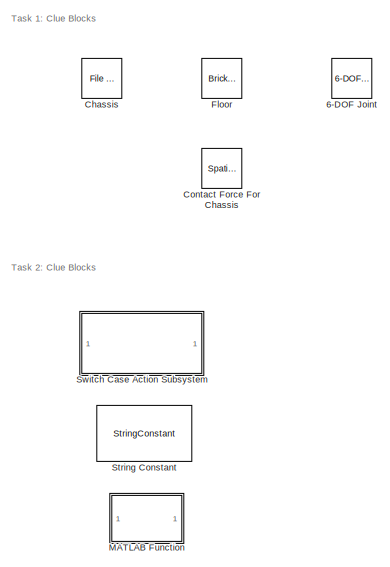
[diagram: root canvas - part 1/2, left side, full height]
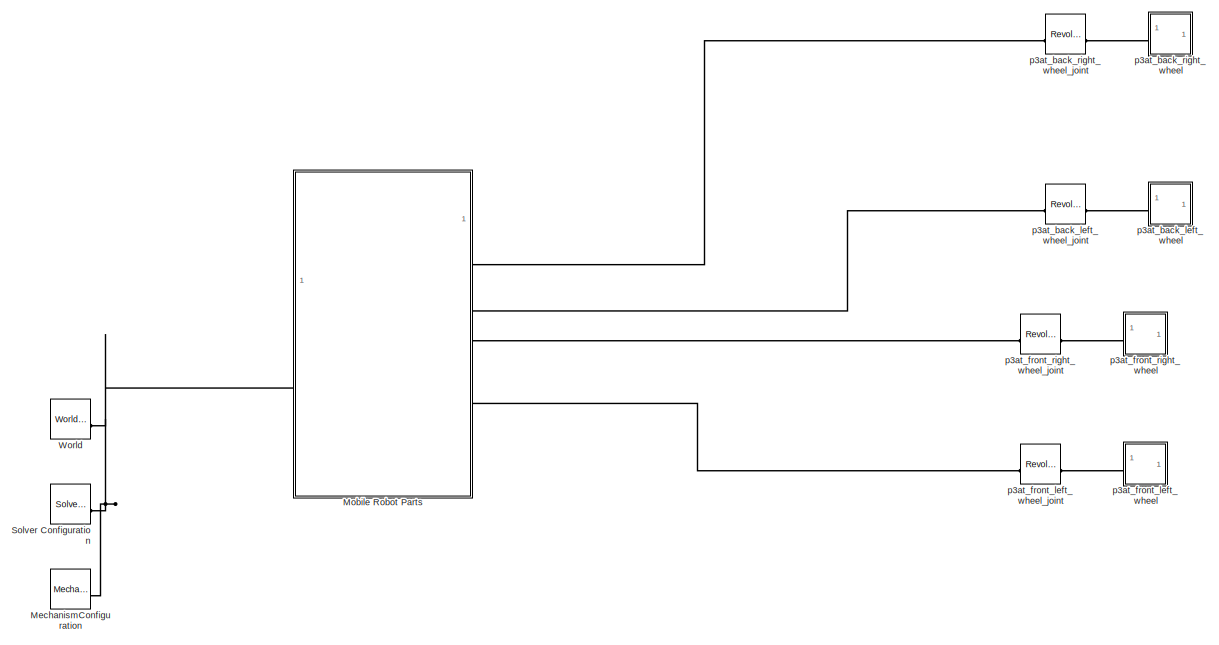
[diagram: root canvas - part 2/2, most of the canvas]
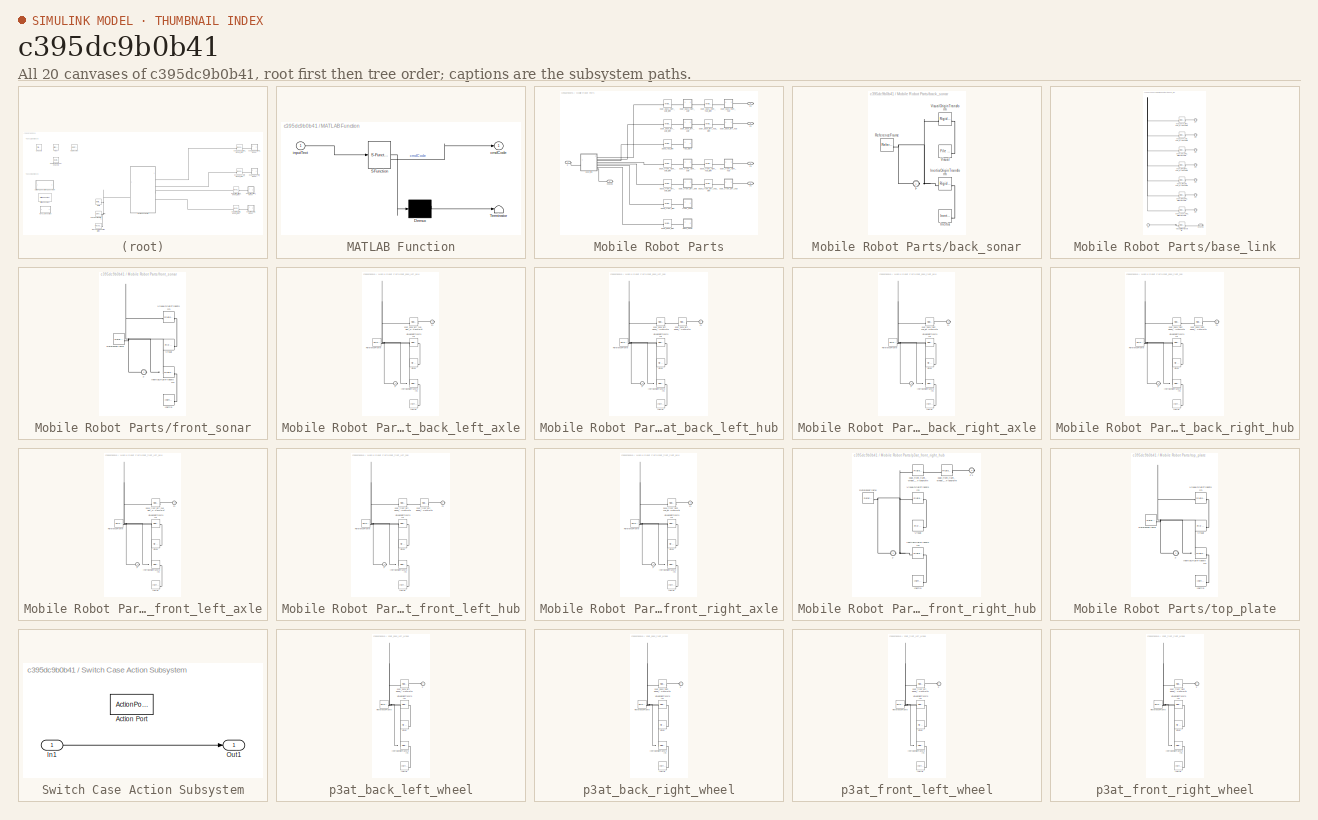
[diagram: thumbnail index - all 20 canvases of the model, root first then tree order]
MODEL slx_c395dc9b0b41
KIND model
CONFIG AbsTol = auto
CONFIG EnableMultiTasking = off
CONFIG FixedStep = auto
CONFIG MaxStep = auto
CONFIG MinStep = auto
CONFIG RelTol = 1e-3
CONFIG SampleTimeConstraint = Unconstrained
CONFIG SolverName = VariableStepAuto
CONFIG StartTime = 0.0
CONFIG StopTime = 10.0
BLOCK [Reference] 6-DOF Joint  REF=sm_lib/Joints/6-DOF Joint
  SourceBlock = sm_lib/Joints/6-DOF Joint
  SourceType = 6-DOF Joint
BLOCK [Reference] Chassis  REF=sm_lib/Body Elements/File Solid
  SourceBlock = sm_lib/Body Elements/File Solid
  SourceType = File Solid
BLOCK [Reference] Contact Force For Chassis  REF=sm_lib/Forces and
Torques/Spatial
Contact Force
  NameLocation = right
  SourceBlock = sm_lib/Forces and\nTorques/Spatial\nContact Force
  SourceType = Spatial\nContact Force
BLOCK [Reference] Floor  REF=sm_lib/Body Elements/Brick Solid
  SourceBlock = sm_lib/Body Elements/Brick Solid
  SourceType = Brick Solid
BLOCK [SubSystem] MATLAB Function
  ErrorFcn = Stateflow.Translate.translate
  PermitHierarchicalResolution = ExplicitOnly
  SFBlockType = MATLAB Function
  TreatAsAtomicUnit = on
BLOCK [Demux] MATLAB Function/ Demux 
  Outputs = 1
BLOCK [S-Function] MATLAB Function/ SFunction 
  EnableBusSupport = on
  FunctionName = sf_sfun
  PortCounts = [1 2]
  SFcnIsStateOwnerBlock = off
  SFunctionDeploymentMode = off
  Tag = Stateflow S-Function 2
BLOCK [Terminator] MATLAB Function/ Terminator 
BLOCK [Outport] MATLAB Function/cmdCode
BLOCK [Inport] MATLAB Function/inputText
BLOCK [Reference] MechanismConfiguration  REF=sm_lib/Utilities/Mechanism
Configuration
  SourceBlock = sm_lib/Utilities/Mechanism\nConfiguration
  SourceType = Mechanism\nConfiguration
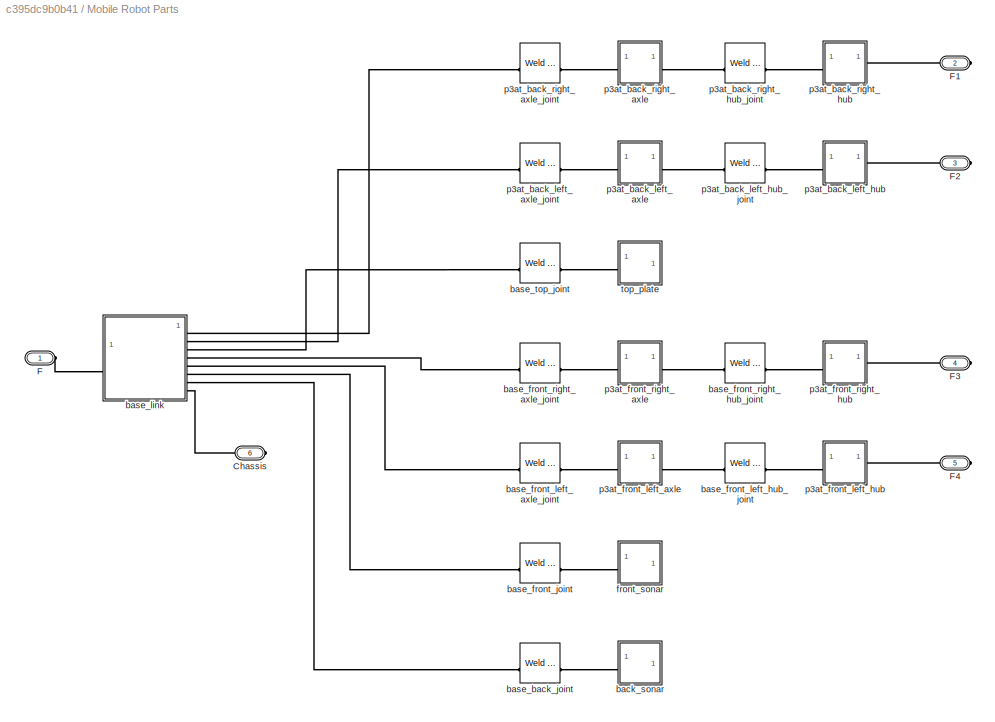
BLOCK [SubSystem] Mobile Robot Parts
BLOCK [PMIOPort] Mobile Robot Parts/Chassis
  Port = 6
  Side = Right
BLOCK [PMIOPort] Mobile Robot Parts/F
  Side = Left
BLOCK [PMIOPort] Mobile Robot Parts/F1
  Port = 2
  Side = Right
BLOCK [PMIOPort] Mobile Robot Parts/F2
  Port = 3
  Side = Right
BLOCK [PMIOPort] Mobile Robot Parts/F3
  Port = 4
  Side = Right
BLOCK [PMIOPort] Mobile Robot Parts/F4
  Port = 5
  Side = Right
BLOCK [SubSystem] Mobile Robot Parts/back_sonar
BLOCK [PMIOPort] Mobile Robot Parts/back_sonar/F
  Side = Left
BLOCK [Reference] Mobile Robot Parts/back_sonar/Inertia  REF=sm_lib/Body Elements/Inertia
  SourceBlock = sm_lib/Body Elements/Inertia
  SourceType = Inertia
BLOCK [Reference] Mobile Robot Parts/back_sonar/InertiaOriginTransform  REF=sm_lib/Frames and
Transforms/Rigid
Transform
  SourceBlock = sm_lib/Frames and\nTransforms/Rigid\nTransform
  SourceType = Rigid\nTransform
BLOCK [Reference] Mobile Robot Parts/back_sonar/ReferenceFrame  REF=sm_lib/Frames and
Transforms/Reference
Frame
  SourceBlock = sm_lib/Frames and\nTransforms/Reference\nFrame
  SourceType = Reference\nFrame
BLOCK [Reference] Mobile Robot Parts/back_sonar/Visual  REF=sm_lib/Body Elements/File Solid
  SourceBlock = sm_lib/Body Elements/File Solid
  SourceType = File Solid
BLOCK [Reference] Mobile Robot Parts/back_sonar/VisualOriginTransform  REF=sm_lib/Frames and
Transforms/Rigid
Transform
  SourceBlock = sm_lib/Frames and\nTransforms/Rigid\nTransform
  SourceType = Rigid\nTransform
BLOCK [Reference] Mobile Robot Parts/base_back_joint  REF=sm_lib/Joints/Weld Joint
  SourceBlock = sm_lib/Joints/Weld Joint
  SourceType = Weld Joint
BLOCK [Reference] Mobile Robot Parts/base_front_joint  REF=sm_lib/Joints/Weld Joint
  SourceBlock = sm_lib/Joints/Weld Joint
  SourceType = Weld Joint
BLOCK [Reference] Mobile Robot Parts/base_front_left_axle_joint  REF=sm_lib/Joints/Weld Joint
  SourceBlock = sm_lib/Joints/Weld Joint
  SourceType = Weld Joint
BLOCK [Reference] Mobile Robot Parts/base_front_left_hub_joint  REF=sm_lib/Joints/Weld Joint
  SourceBlock = sm_lib/Joints/Weld Joint
  SourceType = Weld Joint
BLOCK [Reference] Mobile Robot Parts/base_front_right_axle_joint  REF=sm_lib/Joints/Weld Joint
  SourceBlock = sm_lib/Joints/Weld Joint
  SourceType = Weld Joint
BLOCK [Reference] Mobile Robot Parts/base_front_right_hub_joint  REF=sm_lib/Joints/Weld Joint
  SourceBlock = sm_lib/Joints/Weld Joint
  SourceType = Weld Joint
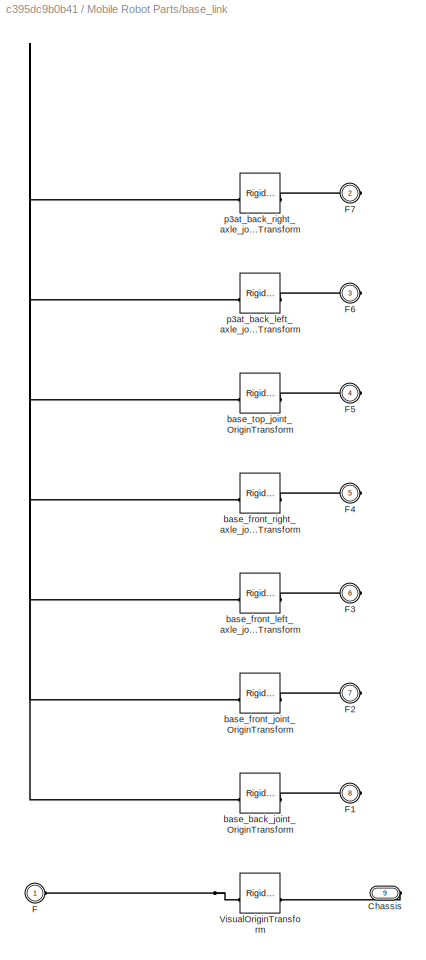
BLOCK [SubSystem] Mobile Robot Parts/base_link
BLOCK [PMIOPort] Mobile Robot Parts/base_link/Chassis
  Port = 9
  Side = Right
BLOCK [PMIOPort] Mobile Robot Parts/base_link/F
  Side = Left
BLOCK [PMIOPort] Mobile Robot Parts/base_link/F1
  Port = 8
  Side = Right
BLOCK [PMIOPort] Mobile Robot Parts/base_link/F2
  Port = 7
  Side = Right
BLOCK [PMIOPort] Mobile Robot Parts/base_link/F3
  Port = 6
  Side = Right
BLOCK [PMIOPort] Mobile Robot Parts/base_link/F4
  Port = 5
  Side = Right
BLOCK [PMIOPort] Mobile Robot Parts/base_link/F5
  Port = 4
  Side = Right
BLOCK [PMIOPort] Mobile Robot Parts/base_link/F6
  Port = 3
  Side = Right
BLOCK [PMIOPort] Mobile Robot Parts/base_link/F7
  Port = 2
  Side = Right
BLOCK [Reference] Mobile Robot Parts/base_link/VisualOriginTransform  REF=sm_lib/Frames and
Transforms/Rigid
Transform
  SourceBlock = sm_lib/Frames and\nTransforms/Rigid\nTransform
  SourceType = Rigid\nTransform
BLOCK [Reference] Mobile Robot Parts/base_link/base_back_joint_OriginTransform  REF=sm_lib/Frames and
Transforms/Rigid
Transform
  SourceBlock = sm_lib/Frames and\nTransforms/Rigid\nTransform
  SourceType = Rigid\nTransform
BLOCK [Reference] Mobile Robot Parts/base_link/base_front_joint_OriginTransform  REF=sm_lib/Frames and
Transforms/Rigid
Transform
  SourceBlock = sm_lib/Frames and\nTransforms/Rigid\nTransform
  SourceType = Rigid\nTransform
BLOCK [Reference] Mobile Robot Parts/base_link/base_front_left_axle_joint_OriginTransform  REF=sm_lib/Frames and
Transforms/Rigid
Transform
  SourceBlock = sm_lib/Frames and\nTransforms/Rigid\nTransform
  SourceType = Rigid\nTransform
BLOCK [Reference] Mobile Robot Parts/base_link/base_front_right_axle_joint_OriginTransform  REF=sm_lib/Frames and
Transforms/Rigid
Transform
  SourceBlock = sm_lib/Frames and\nTransforms/Rigid\nTransform
  SourceType = Rigid\nTransform
BLOCK [Reference] Mobile Robot Parts/base_link/base_top_joint_OriginTransform  REF=sm_lib/Frames and
Transforms/Rigid
Transform
  SourceBlock = sm_lib/Frames and\nTransforms/Rigid\nTransform
  SourceType = Rigid\nTransform
BLOCK [Reference] Mobile Robot Parts/base_link/p3at_back_left_axle_joint_OriginTransform  REF=sm_lib/Frames and
Transforms/Rigid
Transform
  SourceBlock = sm_lib/Frames and\nTransforms/Rigid\nTransform
  SourceType = Rigid\nTransform
BLOCK [Reference] Mobile Robot Parts/base_link/p3at_back_right_axle_joint_OriginTransform  REF=sm_lib/Frames and
Transforms/Rigid
Transform
  SourceBlock = sm_lib/Frames and\nTransforms/Rigid\nTransform
  SourceType = Rigid\nTransform
BLOCK [Reference] Mobile Robot Parts/base_top_joint  REF=sm_lib/Joints/Weld Joint
  SourceBlock = sm_lib/Joints/Weld Joint
  SourceType = Weld Joint
BLOCK [SubSystem] Mobile Robot Parts/front_sonar
BLOCK [PMIOPort] Mobile Robot Parts/front_sonar/F
  Side = Left
BLOCK [Reference] Mobile Robot Parts/front_sonar/Inertia  REF=sm_lib/Body Elements/Inertia
  SourceBlock = sm_lib/Body Elements/Inertia
  SourceType = Inertia
BLOCK [Reference] Mobile Robot Parts/front_sonar/InertiaOriginTransform  REF=sm_lib/Frames and
Transforms/Rigid
Transform
  SourceBlock = sm_lib/Frames and\nTransforms/Rigid\nTransform
  SourceType = Rigid\nTransform
BLOCK [Reference] Mobile Robot Parts/front_sonar/ReferenceFrame  REF=sm_lib/Frames and
Transforms/Reference
Frame
  SourceBlock = sm_lib/Frames and\nTransforms/Reference\nFrame
  SourceType = Reference\nFrame
BLOCK [Reference] Mobile Robot Parts/front_sonar/Visual  REF=sm_lib/Body Elements/File Solid
  SourceBlock = sm_lib/Body Elements/File Solid
  SourceType = File Solid
BLOCK [Reference] Mobile Robot Parts/front_sonar/VisualOriginTransform  REF=sm_lib/Frames and
Transforms/Rigid
Transform
  SourceBlock = sm_lib/Frames and\nTransforms/Rigid\nTransform
  SourceType = Rigid\nTransform
BLOCK [SubSystem] Mobile Robot Parts/p3at_back_left_axle
BLOCK [PMIOPort] Mobile Robot Parts/p3at_back_left_axle/F
  Side = Left
BLOCK [PMIOPort] Mobile Robot Parts/p3at_back_left_axle/F1
  Port = 2
  Side = Right
BLOCK [Reference] Mobile Robot Parts/p3at_back_left_axle/Inertia  REF=sm_lib/Body Elements/Inertia
  SourceBlock = sm_lib/Body Elements/Inertia
  SourceType = Inertia
BLOCK [Reference] Mobile Robot Parts/p3at_back_left_axle/InertiaOriginTransform  REF=sm_lib/Frames and
Transforms/Rigid
Transform
  SourceBlock = sm_lib/Frames and\nTransforms/Rigid\nTransform
  SourceType = Rigid\nTransform
BLOCK [Reference] Mobile Robot Parts/p3at_back_left_axle/ReferenceFrame  REF=sm_lib/Frames and
Transforms/Reference
Frame
  SourceBlock = sm_lib/Frames and\nTransforms/Reference\nFrame
  SourceType = Reference\nFrame
BLOCK [Reference] Mobile Robot Parts/p3at_back_left_axle/Visual  REF=sm_lib/Body Elements/File Solid
  SourceBlock = sm_lib/Body Elements/File Solid
  SourceType = File Solid
BLOCK [Reference] Mobile Robot Parts/p3at_back_left_axle/VisualOriginTransform  REF=sm_lib/Frames and
Transforms/Rigid
Transform
  SourceBlock = sm_lib/Frames and\nTransforms/Rigid\nTransform
  SourceType = Rigid\nTransform
BLOCK [Reference] Mobile Robot Parts/p3at_back_left_axle/p3at_back_left_hub_joint_OriginTransform  REF=sm_lib/Frames and
Transforms/Rigid
Transform
  SourceBlock = sm_lib/Frames and\nTransforms/Rigid\nTransform
  SourceType = Rigid\nTransform
BLOCK [Reference] Mobile Robot Parts/p3at_back_left_axle_joint  REF=sm_lib/Joints/Weld Joint
  SourceBlock = sm_lib/Joints/Weld Joint
  SourceType = Weld Joint
BLOCK [SubSystem] Mobile Robot Parts/p3at_back_left_hub
BLOCK [PMIOPort] Mobile Robot Parts/p3at_back_left_hub/F
  Side = Left
BLOCK [PMIOPort] Mobile Robot Parts/p3at_back_left_hub/F1
  Port = 2
  Side = Right
BLOCK [Reference] Mobile Robot Parts/p3at_back_left_hub/Inertia  REF=sm_lib/Body Elements/Inertia
  SourceBlock = sm_lib/Body Elements/Inertia
  SourceType = Inertia
BLOCK [Reference] Mobile Robot Parts/p3at_back_left_hub/InertiaOriginTransform  REF=sm_lib/Frames and
Transforms/Rigid
Transform
  SourceBlock = sm_lib/Frames and\nTransforms/Rigid\nTransform
  SourceType = Rigid\nTransform
BLOCK [Reference] Mobile Robot Parts/p3at_back_left_hub/ReferenceFrame  REF=sm_lib/Frames and
Transforms/Reference
Frame
  SourceBlock = sm_lib/Frames and\nTransforms/Reference\nFrame
  SourceType = Reference\nFrame
BLOCK [Reference] Mobile Robot Parts/p3at_back_left_hub/Visual  REF=sm_lib/Body Elements/File Solid
  SourceBlock = sm_lib/Body Elements/File Solid
  SourceType = File Solid
BLOCK [Reference] Mobile Robot Parts/p3at_back_left_hub/VisualOriginTransform  REF=sm_lib/Frames and
Transforms/Rigid
Transform
  SourceBlock = sm_lib/Frames and\nTransforms/Rigid\nTransform
  SourceType = Rigid\nTransform
BLOCK [Reference] Mobile Robot Parts/p3at_back_left_hub/p3at_back_left_wheel_joint_AxisTransform  REF=sm_lib/Frames and
Transforms/Rigid
Transform
  SourceBlock = sm_lib/Frames and\nTransforms/Rigid\nTransform
  SourceType = Rigid\nTransform
BLOCK [Reference] Mobile Robot Parts/p3at_back_left_hub/p3at_back_left_wheel_joint_OriginTransform  REF=sm_lib/Frames and
Transforms/Rigid
Transform
  SourceBlock = sm_lib/Frames and\nTransforms/Rigid\nTransform
  SourceType = Rigid\nTransform
BLOCK [Reference] Mobile Robot Parts/p3at_back_left_hub_joint  REF=sm_lib/Joints/Weld Joint
  SourceBlock = sm_lib/Joints/Weld Joint
  SourceType = Weld Joint
BLOCK [SubSystem] Mobile Robot Parts/p3at_back_right_axle
BLOCK [PMIOPort] Mobile Robot Parts/p3at_back_right_axle/F
  Side = Left
BLOCK [PMIOPort] Mobile Robot Parts/p3at_back_right_axle/F1
  Port = 2
  Side = Right
BLOCK [Reference] Mobile Robot Parts/p3at_back_right_axle/Inertia  REF=sm_lib/Body Elements/Inertia
  SourceBlock = sm_lib/Body Elements/Inertia
  SourceType = Inertia
BLOCK [Reference] Mobile Robot Parts/p3at_back_right_axle/InertiaOriginTransform  REF=sm_lib/Frames and
Transforms/Rigid
Transform
  SourceBlock = sm_lib/Frames and\nTransforms/Rigid\nTransform
  SourceType = Rigid\nTransform
BLOCK [Reference] Mobile Robot Parts/p3at_back_right_axle/ReferenceFrame  REF=sm_lib/Frames and
Transforms/Reference
Frame
  SourceBlock = sm_lib/Frames and\nTransforms/Reference\nFrame
  SourceType = Reference\nFrame
BLOCK [Reference] Mobile Robot Parts/p3at_back_right_axle/Visual  REF=sm_lib/Body Elements/File Solid
  SourceBlock = sm_lib/Body Elements/File Solid
  SourceType = File Solid
BLOCK [Reference] Mobile Robot Parts/p3at_back_right_axle/VisualOriginTransform  REF=sm_lib/Frames and
Transforms/Rigid
Transform
  SourceBlock = sm_lib/Frames and\nTransforms/Rigid\nTransform
  SourceType = Rigid\nTransform
BLOCK [Reference] Mobile Robot Parts/p3at_back_right_axle/p3at_back_right_hub_joint_OriginTransform  REF=sm_lib/Frames and
Transforms/Rigid
Transform
  SourceBlock = sm_lib/Frames and\nTransforms/Rigid\nTransform
  SourceType = Rigid\nTransform
BLOCK [Reference] Mobile Robot Parts/p3at_back_right_axle_joint  REF=sm_lib/Joints/Weld Joint
  SourceBlock = sm_lib/Joints/Weld Joint
  SourceType = Weld Joint
BLOCK [SubSystem] Mobile Robot Parts/p3at_back_right_hub
BLOCK [PMIOPort] Mobile Robot Parts/p3at_back_right_hub/F
  Side = Left
BLOCK [PMIOPort] Mobile Robot Parts/p3at_back_right_hub/F1
  Port = 2
  Side = Right
BLOCK [Reference] Mobile Robot Parts/p3at_back_right_hub/Inertia  REF=sm_lib/Body Elements/Inertia
  SourceBlock = sm_lib/Body Elements/Inertia
  SourceType = Inertia
BLOCK [Reference] Mobile Robot Parts/p3at_back_right_hub/InertiaOriginTransform  REF=sm_lib/Frames and
Transforms/Rigid
Transform
  SourceBlock = sm_lib/Frames and\nTransforms/Rigid\nTransform
  SourceType = Rigid\nTransform
BLOCK [Reference] Mobile Robot Parts/p3at_back_right_hub/ReferenceFrame  REF=sm_lib/Frames and
Transforms/Reference
Frame
  SourceBlock = sm_lib/Frames and\nTransforms/Reference\nFrame
  SourceType = Reference\nFrame
BLOCK [Reference] Mobile Robot Parts/p3at_back_right_hub/Visual  REF=sm_lib/Body Elements/File Solid
  SourceBlock = sm_lib/Body Elements/File Solid
  SourceType = File Solid
BLOCK [Reference] Mobile Robot Parts/p3at_back_right_hub/VisualOriginTransform  REF=sm_lib/Frames and
Transforms/Rigid
Transform
  SourceBlock = sm_lib/Frames and\nTransforms/Rigid\nTransform
  SourceType = Rigid\nTransform
BLOCK [Reference] Mobile Robot Parts/p3at_back_right_hub/p3at_back_right_wheel_joint_AxisTransform  REF=sm_lib/Frames and
Transforms/Rigid
Transform
  SourceBlock = sm_lib/Frames and\nTransforms/Rigid\nTransform
  SourceType = Rigid\nTransform
BLOCK [Reference] Mobile Robot Parts/p3at_back_right_hub/p3at_back_right_wheel_joint_OriginTransform  REF=sm_lib/Frames and
Transforms/Rigid
Transform
  SourceBlock = sm_lib/Frames and\nTransforms/Rigid\nTransform
  SourceType = Rigid\nTransform
BLOCK [Reference] Mobile Robot Parts/p3at_back_right_hub_joint  REF=sm_lib/Joints/Weld Joint
  SourceBlock = sm_lib/Joints/Weld Joint
  SourceType = Weld Joint
BLOCK [SubSystem] Mobile Robot Parts/p3at_front_left_axle
BLOCK [PMIOPort] Mobile Robot Parts/p3at_front_left_axle/F
  Side = Left
BLOCK [PMIOPort] Mobile Robot Parts/p3at_front_left_axle/F1
  Port = 2
  Side = Right
BLOCK [Reference] Mobile Robot Parts/p3at_front_left_axle/Inertia  REF=sm_lib/Body Elements/Inertia
  SourceBlock = sm_lib/Body Elements/Inertia
  SourceType = Inertia
BLOCK [Reference] Mobile Robot Parts/p3at_front_left_axle/InertiaOriginTransform  REF=sm_lib/Frames and
Transforms/Rigid
Transform
  SourceBlock = sm_lib/Frames and\nTransforms/Rigid\nTransform
  SourceType = Rigid\nTransform
BLOCK [Reference] Mobile Robot Parts/p3at_front_left_axle/ReferenceFrame  REF=sm_lib/Frames and
Transforms/Reference
Frame
  SourceBlock = sm_lib/Frames and\nTransforms/Reference\nFrame
  SourceType = Reference\nFrame
BLOCK [Reference] Mobile Robot Parts/p3at_front_left_axle/Visual  REF=sm_lib/Body Elements/File Solid
  SourceBlock = sm_lib/Body Elements/File Solid
  SourceType = File Solid
BLOCK [Reference] Mobile Robot Parts/p3at_front_left_axle/VisualOriginTransform  REF=sm_lib/Frames and
Transforms/Rigid
Transform
  SourceBlock = sm_lib/Frames and\nTransforms/Rigid\nTransform
  SourceType = Rigid\nTransform
BLOCK [Reference] Mobile Robot Parts/p3at_front_left_axle/base_front_left_hub_joint_OriginTransform  REF=sm_lib/Frames and
Transforms/Rigid
Transform
  SourceBlock = sm_lib/Frames and\nTransforms/Rigid\nTransform
  SourceType = Rigid\nTransform
BLOCK [SubSystem] Mobile Robot Parts/p3at_front_left_hub
BLOCK [PMIOPort] Mobile Robot Parts/p3at_front_left_hub/F
  Side = Left
BLOCK [PMIOPort] Mobile Robot Parts/p3at_front_left_hub/F1
  Port = 2
  Side = Right
BLOCK [Reference] Mobile Robot Parts/p3at_front_left_hub/Inertia  REF=sm_lib/Body Elements/Inertia
  SourceBlock = sm_lib/Body Elements/Inertia
  SourceType = Inertia
BLOCK [Reference] Mobile Robot Parts/p3at_front_left_hub/InertiaOriginTransform  REF=sm_lib/Frames and
Transforms/Rigid
Transform
  SourceBlock = sm_lib/Frames and\nTransforms/Rigid\nTransform
  SourceType = Rigid\nTransform
BLOCK [Reference] Mobile Robot Parts/p3at_front_left_hub/ReferenceFrame  REF=sm_lib/Frames and
Transforms/Reference
Frame
  SourceBlock = sm_lib/Frames and\nTransforms/Reference\nFrame
  SourceType = Reference\nFrame
BLOCK [Reference] Mobile Robot Parts/p3at_front_left_hub/Visual  REF=sm_lib/Body Elements/File Solid
  SourceBlock = sm_lib/Body Elements/File Solid
  SourceType = File Solid
BLOCK [Reference] Mobile Robot Parts/p3at_front_left_hub/VisualOriginTransform  REF=sm_lib/Frames and
Transforms/Rigid
Transform
  SourceBlock = sm_lib/Frames and\nTransforms/Rigid\nTransform
  SourceType = Rigid\nTransform
BLOCK [Reference] Mobile Robot Parts/p3at_front_left_hub/p3at_front_left_wheel_joint_AxisTransform  REF=sm_lib/Frames and
Transforms/Rigid
Transform
  SourceBlock = sm_lib/Frames and\nTransforms/Rigid\nTransform
  SourceType = Rigid\nTransform
BLOCK [Reference] Mobile Robot Parts/p3at_front_left_hub/p3at_front_left_wheel_joint_OriginTransform  REF=sm_lib/Frames and
Transforms/Rigid
Transform
  SourceBlock = sm_lib/Frames and\nTransforms/Rigid\nTransform
  SourceType = Rigid\nTransform
BLOCK [SubSystem] Mobile Robot Parts/p3at_front_right_axle
BLOCK [PMIOPort] Mobile Robot Parts/p3at_front_right_axle/F
  Side = Left
BLOCK [PMIOPort] Mobile Robot Parts/p3at_front_right_axle/F1
  Port = 2
  Side = Right
BLOCK [Reference] Mobile Robot Parts/p3at_front_right_axle/Inertia  REF=sm_lib/Body Elements/Inertia
  SourceBlock = sm_lib/Body Elements/Inertia
  SourceType = Inertia
BLOCK [Reference] Mobile Robot Parts/p3at_front_right_axle/InertiaOriginTransform  REF=sm_lib/Frames and
Transforms/Rigid
Transform
  SourceBlock = sm_lib/Frames and\nTransforms/Rigid\nTransform
  SourceType = Rigid\nTransform
BLOCK [Reference] Mobile Robot Parts/p3at_front_right_axle/ReferenceFrame  REF=sm_lib/Frames and
Transforms/Reference
Frame
  SourceBlock = sm_lib/Frames and\nTransforms/Reference\nFrame
  SourceType = Reference\nFrame
BLOCK [Reference] Mobile Robot Parts/p3at_front_right_axle/Visual  REF=sm_lib/Body Elements/File Solid
  SourceBlock = sm_lib/Body Elements/File Solid
  SourceType = File Solid
BLOCK [Reference] Mobile Robot Parts/p3at_front_right_axle/VisualOriginTransform  REF=sm_lib/Frames and
Transforms/Rigid
Transform
  SourceBlock = sm_lib/Frames and\nTransforms/Rigid\nTransform
  SourceType = Rigid\nTransform
BLOCK [Reference] Mobile Robot Parts/p3at_front_right_axle/base_front_right_hub_joint_OriginTransform  REF=sm_lib/Frames and
Transforms/Rigid
Transform
  SourceBlock = sm_lib/Frames and\nTransforms/Rigid\nTransform
  SourceType = Rigid\nTransform
BLOCK [SubSystem] Mobile Robot Parts/p3at_front_right_hub
BLOCK [PMIOPort] Mobile Robot Parts/p3at_front_right_hub/F
  Side = Left
BLOCK [PMIOPort] Mobile Robot Parts/p3at_front_right_hub/F1
  Port = 2
  Side = Right
BLOCK [Reference] Mobile Robot Parts/p3at_front_right_hub/Inertia  REF=sm_lib/Body Elements/Inertia
  SourceBlock = sm_lib/Body Elements/Inertia
  SourceType = Inertia
BLOCK [Reference] Mobile Robot Parts/p3at_front_right_hub/InertiaOriginTransform  REF=sm_lib/Frames and
Transforms/Rigid
Transform
  SourceBlock = sm_lib/Frames and\nTransforms/Rigid\nTransform
  SourceType = Rigid\nTransform
BLOCK [Reference] Mobile Robot Parts/p3at_front_right_hub/ReferenceFrame  REF=sm_lib/Frames and
Transforms/Reference
Frame
  SourceBlock = sm_lib/Frames and\nTransforms/Reference\nFrame
  SourceType = Reference\nFrame
BLOCK [Reference] Mobile Robot Parts/p3at_front_right_hub/Visual  REF=sm_lib/Body Elements/File Solid
  SourceBlock = sm_lib/Body Elements/File Solid
  SourceType = File Solid
BLOCK [Reference] Mobile Robot Parts/p3at_front_right_hub/VisualOriginTransform  REF=sm_lib/Frames and
Transforms/Rigid
Transform
  SourceBlock = sm_lib/Frames and\nTransforms/Rigid\nTransform
  SourceType = Rigid\nTransform
BLOCK [Reference] Mobile Robot Parts/p3at_front_right_hub/p3at_front_right_wheel_joint_AxisTransform  REF=sm_lib/Frames and
Transforms/Rigid
Transform
  SourceBlock = sm_lib/Frames and\nTransforms/Rigid\nTransform
  SourceType = Rigid\nTransform
BLOCK [Reference] Mobile Robot Parts/p3at_front_right_hub/p3at_front_right_wheel_joint_OriginTransform  REF=sm_lib/Frames and
Transforms/Rigid
Transform
  SourceBlock = sm_lib/Frames and\nTransforms/Rigid\nTransform
  SourceType = Rigid\nTransform
BLOCK [SubSystem] Mobile Robot Parts/top_plate
BLOCK [PMIOPort] Mobile Robot Parts/top_plate/F
  Side = Left
BLOCK [Reference] Mobile Robot Parts/top_plate/Inertia  REF=sm_lib/Body Elements/Inertia
  SourceBlock = sm_lib/Body Elements/Inertia
  SourceType = Inertia
BLOCK [Reference] Mobile Robot Parts/top_plate/InertiaOriginTransform  REF=sm_lib/Frames and
Transforms/Rigid
Transform
  SourceBlock = sm_lib/Frames and\nTransforms/Rigid\nTransform
  SourceType = Rigid\nTransform
BLOCK [Reference] Mobile Robot Parts/top_plate/ReferenceFrame  REF=sm_lib/Frames and
Transforms/Reference
Frame
  SourceBlock = sm_lib/Frames and\nTransforms/Reference\nFrame
  SourceType = Reference\nFrame
BLOCK [Reference] Mobile Robot Parts/top_plate/Visual  REF=sm_lib/Body Elements/File Solid
  SourceBlock = sm_lib/Body Elements/File Solid
  SourceType = File Solid
BLOCK [Reference] Mobile Robot Parts/top_plate/VisualOriginTransform  REF=sm_lib/Frames and
Transforms/Rigid
Transform
  SourceBlock = sm_lib/Frames and\nTransforms/Rigid\nTransform
  SourceType = Rigid\nTransform
BLOCK [Reference] Solver Configuration  REF=nesl_utility/Solver
Configuration
  SourceBlock = nesl_utility/Solver\nConfiguration
  SourceType = Solver\nConfiguration
BLOCK [StringConstant] String Constant
BLOCK [SubSystem] Switch Case Action Subsystem
  TreatAsAtomicUnit = on
BLOCK [ActionPort] Switch Case Action Subsystem/Action Port
BLOCK [Inport] Switch Case Action Subsystem/In1
BLOCK [Outport] Switch Case Action Subsystem/Out1
BLOCK [Reference] World  REF=sm_lib/Frames and
Transforms/World Frame
  SourceBlock = sm_lib/Frames and\nTransforms/World Frame
  SourceType = World Frame
BLOCK [SubSystem] p3at_back_left_wheel
BLOCK [PMIOPort] p3at_back_left_wheel/F
  Side = Left
BLOCK [Reference] p3at_back_left_wheel/Inertia  REF=sm_lib/Body Elements/Inertia
  SourceBlock = sm_lib/Body Elements/Inertia
  SourceType = Inertia
BLOCK [Reference] p3at_back_left_wheel/InertiaOriginTransform  REF=sm_lib/Frames and
Transforms/Rigid
Transform
  SourceBlock = sm_lib/Frames and\nTransforms/Rigid\nTransform
  SourceType = Rigid\nTransform
BLOCK [Reference] p3at_back_left_wheel/ReferenceFrame  REF=sm_lib/Frames and
Transforms/Reference
Frame
  SourceBlock = sm_lib/Frames and\nTransforms/Reference\nFrame
  SourceType = Reference\nFrame
BLOCK [Reference] p3at_back_left_wheel/Visual  REF=sm_lib/Body Elements/File Solid
  SourceBlock = sm_lib/Body Elements/File Solid
  SourceType = File Solid
BLOCK [Reference] p3at_back_left_wheel/VisualOriginTransform  REF=sm_lib/Frames and
Transforms/Rigid
Transform
  SourceBlock = sm_lib/Frames and\nTransforms/Rigid\nTransform
  SourceType = Rigid\nTransform
BLOCK [Reference] p3at_back_left_wheel/p3at_back_left_wheel_joint_AxisInvTransform  REF=sm_lib/Frames and
Transforms/Rigid
Transform
  SourceBlock = sm_lib/Frames and\nTransforms/Rigid\nTransform
  SourceType = Rigid\nTransform
BLOCK [Reference] p3at_back_left_wheel_joint  REF=sm_lib/Joints/Revolute Joint
  SourceBlock = sm_lib/Joints/Revolute Joint
  SourceType = Revolute Joint
BLOCK [SubSystem] p3at_back_right_wheel
BLOCK [PMIOPort] p3at_back_right_wheel/F
  Side = Left
BLOCK [Reference] p3at_back_right_wheel/Inertia  REF=sm_lib/Body Elements/Inertia
  SourceBlock = sm_lib/Body Elements/Inertia
  SourceType = Inertia
BLOCK [Reference] p3at_back_right_wheel/InertiaOriginTransform  REF=sm_lib/Frames and
Transforms/Rigid
Transform
  SourceBlock = sm_lib/Frames and\nTransforms/Rigid\nTransform
  SourceType = Rigid\nTransform
BLOCK [Reference] p3at_back_right_wheel/ReferenceFrame  REF=sm_lib/Frames and
Transforms/Reference
Frame
  SourceBlock = sm_lib/Frames and\nTransforms/Reference\nFrame
  SourceType = Reference\nFrame
BLOCK [Reference] p3at_back_right_wheel/Visual  REF=sm_lib/Body Elements/File Solid
  SourceBlock = sm_lib/Body Elements/File Solid
  SourceType = File Solid
BLOCK [Reference] p3at_back_right_wheel/VisualOriginTransform  REF=sm_lib/Frames and
Transforms/Rigid
Transform
  SourceBlock = sm_lib/Frames and\nTransforms/Rigid\nTransform
  SourceType = Rigid\nTransform
BLOCK [Reference] p3at_back_right_wheel/p3at_back_right_wheel_joint_AxisInvTransform  REF=sm_lib/Frames and
Transforms/Rigid
Transform
  SourceBlock = sm_lib/Frames and\nTransforms/Rigid\nTransform
  SourceType = Rigid\nTransform
BLOCK [Reference] p3at_back_right_wheel_joint  REF=sm_lib/Joints/Revolute Joint
  SourceBlock = sm_lib/Joints/Revolute Joint
  SourceType = Revolute Joint
BLOCK [SubSystem] p3at_front_left_wheel
BLOCK [PMIOPort] p3at_front_left_wheel/F
  Side = Left
BLOCK [Reference] p3at_front_left_wheel/Inertia  REF=sm_lib/Body Elements/Inertia
  SourceBlock = sm_lib/Body Elements/Inertia
  SourceType = Inertia
BLOCK [Reference] p3at_front_left_wheel/InertiaOriginTransform  REF=sm_lib/Frames and
Transforms/Rigid
Transform
  SourceBlock = sm_lib/Frames and\nTransforms/Rigid\nTransform
  SourceType = Rigid\nTransform
BLOCK [Reference] p3at_front_left_wheel/ReferenceFrame  REF=sm_lib/Frames and
Transforms/Reference
Frame
  SourceBlock = sm_lib/Frames and\nTransforms/Reference\nFrame
  SourceType = Reference\nFrame
BLOCK [Reference] p3at_front_left_wheel/Visual  REF=sm_lib/Body Elements/File Solid
  SourceBlock = sm_lib/Body Elements/File Solid
  SourceType = File Solid
BLOCK [Reference] p3at_front_left_wheel/VisualOriginTransform  REF=sm_lib/Frames and
Transforms/Rigid
Transform
  SourceBlock = sm_lib/Frames and\nTransforms/Rigid\nTransform
  SourceType = Rigid\nTransform
BLOCK [Reference] p3at_front_left_wheel/p3at_front_left_wheel_joint_AxisInvTransform  REF=sm_lib/Frames and
Transforms/Rigid
Transform
  SourceBlock = sm_lib/Frames and\nTransforms/Rigid\nTransform
  SourceType = Rigid\nTransform
BLOCK [Reference] p3at_front_left_wheel_joint  REF=sm_lib/Joints/Revolute Joint
  SourceBlock = sm_lib/Joints/Revolute Joint
  SourceType = Revolute Joint
BLOCK [SubSystem] p3at_front_right_wheel
BLOCK [PMIOPort] p3at_front_right_wheel/F
  Side = Left
BLOCK [Reference] p3at_front_right_wheel/Inertia  REF=sm_lib/Body Elements/Inertia
  SourceBlock = sm_lib/Body Elements/Inertia
  SourceType = Inertia
BLOCK [Reference] p3at_front_right_wheel/InertiaOriginTransform  REF=sm_lib/Frames and
Transforms/Rigid
Transform
  SourceBlock = sm_lib/Frames and\nTransforms/Rigid\nTransform
  SourceType = Rigid\nTransform
BLOCK [Reference] p3at_front_right_wheel/ReferenceFrame  REF=sm_lib/Frames and
Transforms/Reference
Frame
  SourceBlock = sm_lib/Frames and\nTransforms/Reference\nFrame
  SourceType = Reference\nFrame
BLOCK [Reference] p3at_front_right_wheel/Visual  REF=sm_lib/Body Elements/File Solid
  SourceBlock = sm_lib/Body Elements/File Solid
  SourceType = File Solid
BLOCK [Reference] p3at_front_right_wheel/VisualOriginTransform  REF=sm_lib/Frames and
Transforms/Rigid
Transform
  SourceBlock = sm_lib/Frames and\nTransforms/Rigid\nTransform
  SourceType = Rigid\nTransform
BLOCK [Reference] p3at_front_right_wheel/p3at_front_right_wheel_joint_AxisInvTransform  REF=sm_lib/Frames and
Transforms/Rigid
Transform
  SourceBlock = sm_lib/Frames and\nTransforms/Rigid\nTransform
  SourceType = Rigid\nTransform
BLOCK [Reference] p3at_front_right_wheel_joint  REF=sm_lib/Joints/Revolute Joint
  SourceBlock = sm_lib/Joints/Revolute Joint
  SourceType = Revolute Joint
ANNOTATION (root): Task 1: Clue Blocks
ANNOTATION (root): Task 2: Clue Blocks
LINE Switch Case Action Subsystem/In1:1 -> Switch Case Action Subsystem/Out1:1
PNET net1: MechanismConfiguration:RConn1 -- Mobile Robot Parts:LConn1 -- Solver Configuration:RConn1 -- World:RConn1
PLINE Mobile Robot Parts/Chassis:RConn1 -- Mobile Robot Parts/base_link:RConn8
PLINE Mobile Robot Parts/F1:RConn1 -- Mobile Robot Parts/p3at_back_right_hub:RConn1
PLINE Mobile Robot Parts/F2:RConn1 -- Mobile Robot Parts/p3at_back_left_hub:RConn1
PLINE Mobile Robot Parts/F3:RConn1 -- Mobile Robot Parts/p3at_front_right_hub:RConn1
PLINE Mobile Robot Parts/F4:RConn1 -- Mobile Robot Parts/p3at_front_left_hub:RConn1
PLINE Mobile Robot Parts/F:RConn1 -- Mobile Robot Parts/base_link:LConn1
PNET net2: Mobile Robot Parts/back_sonar/F:RConn1 -- Mobile Robot Parts/back_sonar/InertiaOriginTransform:LConn1 -- Mobile Robot Parts/back_sonar/ReferenceFrame:RConn1 -- Mobile Robot Parts/back_sonar/VisualOriginTransform:LConn1
PLINE Mobile Robot Parts/back_sonar/Inertia:RConn1 -- Mobile Robot Parts/back_sonar/InertiaOriginTransform:RConn1
PLINE Mobile Robot Parts/back_sonar/Visual:RConn1 -- Mobile Robot Parts/back_sonar/VisualOriginTransform:RConn1
PLINE Mobile Robot Parts/back_sonar:LConn1 -- Mobile Robot Parts/base_back_joint:RConn1
PLINE Mobile Robot Parts/base_back_joint:LConn1 -- Mobile Robot Parts/base_link:RConn7
PLINE Mobile Robot Parts/base_front_joint:LConn1 -- Mobile Robot Parts/base_link:RConn6
PLINE Mobile Robot Parts/base_front_joint:RConn1 -- Mobile Robot Parts/front_sonar:LConn1
PLINE Mobile Robot Parts/base_front_left_axle_joint:LConn1 -- Mobile Robot Parts/base_link:RConn5
PLINE Mobile Robot Parts/base_front_left_axle_joint:RConn1 -- Mobile Robot Parts/p3at_front_left_axle:LConn1
PLINE Mobile Robot Parts/base_front_left_hub_joint:LConn1 -- Mobile Robot Parts/p3at_front_left_axle:RConn1
PLINE Mobile Robot Parts/base_front_left_hub_joint:RConn1 -- Mobile Robot Parts/p3at_front_left_hub:LConn1
PLINE Mobile Robot Parts/base_front_right_axle_joint:LConn1 -- Mobile Robot Parts/base_link:RConn4
PLINE Mobile Robot Parts/base_front_right_axle_joint:RConn1 -- Mobile Robot Parts/p3at_front_right_axle:LConn1
PLINE Mobile Robot Parts/base_front_right_hub_joint:LConn1 -- Mobile Robot Parts/p3at_front_right_axle:RConn1
PLINE Mobile Robot Parts/base_front_right_hub_joint:RConn1 -- Mobile Robot Parts/p3at_front_right_hub:LConn1
PLINE Mobile Robot Parts/base_link/Chassis:RConn1 -- Mobile Robot Parts/base_link/VisualOriginTransform:RConn1
PLINE Mobile Robot Parts/base_link/F1:RConn1 -- Mobile Robot Parts/base_link/base_back_joint_OriginTransform:RConn1
PLINE Mobile Robot Parts/base_link/F2:RConn1 -- Mobile Robot Parts/base_link/base_front_joint_OriginTransform:RConn1
PLINE Mobile Robot Parts/base_link/F3:RConn1 -- Mobile Robot Parts/base_link/base_front_left_axle_joint_OriginTransform:RConn1
PLINE Mobile Robot Parts/base_link/F4:RConn1 -- Mobile Robot Parts/base_link/base_front_right_axle_joint_OriginTransform:RConn1
PLINE Mobile Robot Parts/base_link/F5:RConn1 -- Mobile Robot Parts/base_link/base_top_joint_OriginTransform:RConn1
PLINE Mobile Robot Parts/base_link/F6:RConn1 -- Mobile Robot Parts/base_link/p3at_back_left_axle_joint_OriginTransform:RConn1
PLINE Mobile Robot Parts/base_link/F7:RConn1 -- Mobile Robot Parts/base_link/p3at_back_right_axle_joint_OriginTransform:RConn1
PNET net3: Mobile Robot Parts/base_link/F:RConn1 -- Mobile Robot Parts/base_link/VisualOriginTransform:LConn1 -- Mobile Robot Parts/base_link/base_back_joint_OriginTransform:LConn1 -- Mobile Robot Parts/base_link/base_front_joint_OriginTransform:LConn1 -- Mobile Robot Parts/base_link/base_front_left_axle_joint_OriginTransform:LConn1 -- Mobile Robot Parts/base_link/base_front_right_axle_joint_OriginTransform:LConn1 -- Mobile Robot Parts/base_link/base_top_joint_OriginTransform:LConn1 -- Mobile Robot Parts/base_link/p3at_back_left_axle_joint_OriginTransform:LConn1 -- Mobile Robot Parts/base_link/p3at_back_right_axle_joint_OriginTransform:LConn1
PLINE Mobile Robot Parts/base_link:RConn1 -- Mobile Robot Parts/p3at_back_right_axle_joint:LConn1
PLINE Mobile Robot Parts/base_link:RConn2 -- Mobile Robot Parts/p3at_back_left_axle_joint:LConn1
PLINE Mobile Robot Parts/base_link:RConn3 -- Mobile Robot Parts/base_top_joint:LConn1
PLINE Mobile Robot Parts/base_top_joint:RConn1 -- Mobile Robot Parts/top_plate:LConn1
PNET net4: Mobile Robot Parts/front_sonar/F:RConn1 -- Mobile Robot Parts/front_sonar/InertiaOriginTransform:LConn1 -- Mobile Robot Parts/front_sonar/ReferenceFrame:RConn1 -- Mobile Robot Parts/front_sonar/VisualOriginTransform:LConn1
PLINE Mobile Robot Parts/front_sonar/Inertia:RConn1 -- Mobile Robot Parts/front_sonar/InertiaOriginTransform:RConn1
PLINE Mobile Robot Parts/front_sonar/Visual:RConn1 -- Mobile Robot Parts/front_sonar/VisualOriginTransform:RConn1
PLINE Mobile Robot Parts/p3at_back_left_axle/F1:RConn1 -- Mobile Robot Parts/p3at_back_left_axle/p3at_back_left_hub_joint_OriginTransform:RConn1
PNET net5: Mobile Robot Parts/p3at_back_left_axle/F:RConn1 -- Mobile Robot Parts/p3at_back_left_axle/InertiaOriginTransform:LConn1 -- Mobile Robot Parts/p3at_back_left_axle/ReferenceFrame:RConn1 -- Mobile Robot Parts/p3at_back_left_axle/VisualOriginTransform:LConn1 -- Mobile Robot Parts/p3at_back_left_axle/p3at_back_left_hub_joint_OriginTransform:LConn1
PLINE Mobile Robot Parts/p3at_back_left_axle/Inertia:RConn1 -- Mobile Robot Parts/p3at_back_left_axle/InertiaOriginTransform:RConn1
PLINE Mobile Robot Parts/p3at_back_left_axle/Visual:RConn1 -- Mobile Robot Parts/p3at_back_left_axle/VisualOriginTransform:RConn1
PLINE Mobile Robot Parts/p3at_back_left_axle:LConn1 -- Mobile Robot Parts/p3at_back_left_axle_joint:RConn1
PLINE Mobile Robot Parts/p3at_back_left_axle:RConn1 -- Mobile Robot Parts/p3at_back_left_hub_joint:LConn1
PLINE Mobile Robot Parts/p3at_back_left_hub/F1:RConn1 -- Mobile Robot Parts/p3at_back_left_hub/p3at_back_left_wheel_joint_AxisTransform:RConn1
PNET net6: Mobile Robot Parts/p3at_back_left_hub/F:RConn1 -- Mobile Robot Parts/p3at_back_left_hub/InertiaOriginTransform:LConn1 -- Mobile Robot Parts/p3at_back_left_hub/ReferenceFrame:RConn1 -- Mobile Robot Parts/p3at_back_left_hub/VisualOriginTransform:LConn1 -- Mobile Robot Parts/p3at_back_left_hub/p3at_back_left_wheel_joint_OriginTransform:LConn1
PLINE Mobile Robot Parts/p3at_back_left_hub/Inertia:RConn1 -- Mobile Robot Parts/p3at_back_left_hub/InertiaOriginTransform:RConn1
PLINE Mobile Robot Parts/p3at_back_left_hub/Visual:RConn1 -- Mobile Robot Parts/p3at_back_left_hub/VisualOriginTransform:RConn1
PLINE Mobile Robot Parts/p3at_back_left_hub/p3at_back_left_wheel_joint_AxisTransform:LConn1 -- Mobile Robot Parts/p3at_back_left_hub/p3at_back_left_wheel_joint_OriginTransform:RConn1
PLINE Mobile Robot Parts/p3at_back_left_hub:LConn1 -- Mobile Robot Parts/p3at_back_left_hub_joint:RConn1
PLINE Mobile Robot Parts/p3at_back_right_axle/F1:RConn1 -- Mobile Robot Parts/p3at_back_right_axle/p3at_back_right_hub_joint_OriginTransform:RConn1
PNET net7: Mobile Robot Parts/p3at_back_right_axle/F:RConn1 -- Mobile Robot Parts/p3at_back_right_axle/InertiaOriginTransform:LConn1 -- Mobile Robot Parts/p3at_back_right_axle/ReferenceFrame:RConn1 -- Mobile Robot Parts/p3at_back_right_axle/VisualOriginTransform:LConn1 -- Mobile Robot Parts/p3at_back_right_axle/p3at_back_right_hub_joint_OriginTransform:LConn1
PLINE Mobile Robot Parts/p3at_back_right_axle/Inertia:RConn1 -- Mobile Robot Parts/p3at_back_right_axle/InertiaOriginTransform:RConn1
PLINE Mobile Robot Parts/p3at_back_right_axle/Visual:RConn1 -- Mobile Robot Parts/p3at_back_right_axle/VisualOriginTransform:RConn1
PLINE Mobile Robot Parts/p3at_back_right_axle:LConn1 -- Mobile Robot Parts/p3at_back_right_axle_joint:RConn1
PLINE Mobile Robot Parts/p3at_back_right_axle:RConn1 -- Mobile Robot Parts/p3at_back_right_hub_joint:LConn1
PLINE Mobile Robot Parts/p3at_back_right_hub/F1:RConn1 -- Mobile Robot Parts/p3at_back_right_hub/p3at_back_right_wheel_joint_AxisTransform:RConn1
PNET net8: Mobile Robot Parts/p3at_back_right_hub/F:RConn1 -- Mobile Robot Parts/p3at_back_right_hub/InertiaOriginTransform:LConn1 -- Mobile Robot Parts/p3at_back_right_hub/ReferenceFrame:RConn1 -- Mobile Robot Parts/p3at_back_right_hub/VisualOriginTransform:LConn1 -- Mobile Robot Parts/p3at_back_right_hub/p3at_back_right_wheel_joint_OriginTransform:LConn1
PLINE Mobile Robot Parts/p3at_back_right_hub/Inertia:RConn1 -- Mobile Robot Parts/p3at_back_right_hub/InertiaOriginTransform:RConn1
PLINE Mobile Robot Parts/p3at_back_right_hub/Visual:RConn1 -- Mobile Robot Parts/p3at_back_right_hub/VisualOriginTransform:RConn1
PLINE Mobile Robot Parts/p3at_back_right_hub/p3at_back_right_wheel_joint_AxisTransform:LConn1 -- Mobile Robot Parts/p3at_back_right_hub/p3at_back_right_wheel_joint_OriginTransform:RConn1
PLINE Mobile Robot Parts/p3at_back_right_hub:LConn1 -- Mobile Robot Parts/p3at_back_right_hub_joint:RConn1
PLINE Mobile Robot Parts/p3at_front_left_axle/F1:RConn1 -- Mobile Robot Parts/p3at_front_left_axle/base_front_left_hub_joint_OriginTransform:RConn1
PNET net9: Mobile Robot Parts/p3at_front_left_axle/F:RConn1 -- Mobile Robot Parts/p3at_front_left_axle/InertiaOriginTransform:LConn1 -- Mobile Robot Parts/p3at_front_left_axle/ReferenceFrame:RConn1 -- Mobile Robot Parts/p3at_front_left_axle/VisualOriginTransform:LConn1 -- Mobile Robot Parts/p3at_front_left_axle/base_front_left_hub_joint_OriginTransform:LConn1
PLINE Mobile Robot Parts/p3at_front_left_axle/Inertia:RConn1 -- Mobile Robot Parts/p3at_front_left_axle/InertiaOriginTransform:RConn1
PLINE Mobile Robot Parts/p3at_front_left_axle/Visual:RConn1 -- Mobile Robot Parts/p3at_front_left_axle/VisualOriginTransform:RConn1
PLINE Mobile Robot Parts/p3at_front_left_hub/F1:RConn1 -- Mobile Robot Parts/p3at_front_left_hub/p3at_front_left_wheel_joint_AxisTransform:RConn1
PNET net10: Mobile Robot Parts/p3at_front_left_hub/F:RConn1 -- Mobile Robot Parts/p3at_front_left_hub/InertiaOriginTransform:LConn1 -- Mobile Robot Parts/p3at_front_left_hub/ReferenceFrame:RConn1 -- Mobile Robot Parts/p3at_front_left_hub/VisualOriginTransform:LConn1 -- Mobile Robot Parts/p3at_front_left_hub/p3at_front_left_wheel_joint_OriginTransform:LConn1
PLINE Mobile Robot Parts/p3at_front_left_hub/Inertia:RConn1 -- Mobile Robot Parts/p3at_front_left_hub/InertiaOriginTransform:RConn1
PLINE Mobile Robot Parts/p3at_front_left_hub/Visual:RConn1 -- Mobile Robot Parts/p3at_front_left_hub/VisualOriginTransform:RConn1
PLINE Mobile Robot Parts/p3at_front_left_hub/p3at_front_left_wheel_joint_AxisTransform:LConn1 -- Mobile Robot Parts/p3at_front_left_hub/p3at_front_left_wheel_joint_OriginTransform:RConn1
PLINE Mobile Robot Parts/p3at_front_right_axle/F1:RConn1 -- Mobile Robot Parts/p3at_front_right_axle/base_front_right_hub_joint_OriginTransform:RConn1
PNET net11: Mobile Robot Parts/p3at_front_right_axle/F:RConn1 -- Mobile Robot Parts/p3at_front_right_axle/InertiaOriginTransform:LConn1 -- Mobile Robot Parts/p3at_front_right_axle/ReferenceFrame:RConn1 -- Mobile Robot Parts/p3at_front_right_axle/VisualOriginTransform:LConn1 -- Mobile Robot Parts/p3at_front_right_axle/base_front_right_hub_joint_OriginTransform:LConn1
PLINE Mobile Robot Parts/p3at_front_right_axle/Inertia:RConn1 -- Mobile Robot Parts/p3at_front_right_axle/InertiaOriginTransform:RConn1
PLINE Mobile Robot Parts/p3at_front_right_axle/Visual:RConn1 -- Mobile Robot Parts/p3at_front_right_axle/VisualOriginTransform:RConn1
PLINE Mobile Robot Parts/p3at_front_right_hub/F1:RConn1 -- Mobile Robot Parts/p3at_front_right_hub/p3at_front_right_wheel_joint_AxisTransform:RConn1
PNET net12: Mobile Robot Parts/p3at_front_right_hub/F:RConn1 -- Mobile Robot Parts/p3at_front_right_hub/InertiaOriginTransform:LConn1 -- Mobile Robot Parts/p3at_front_right_hub/ReferenceFrame:RConn1 -- Mobile Robot Parts/p3at_front_right_hub/VisualOriginTransform:LConn1 -- Mobile Robot Parts/p3at_front_right_hub/p3at_front_right_wheel_joint_OriginTransform:LConn1
PLINE Mobile Robot Parts/p3at_front_right_hub/Inertia:RConn1 -- Mobile Robot Parts/p3at_front_right_hub/InertiaOriginTransform:RConn1
PLINE Mobile Robot Parts/p3at_front_right_hub/Visual:RConn1 -- Mobile Robot Parts/p3at_front_right_hub/VisualOriginTransform:RConn1
PLINE Mobile Robot Parts/p3at_front_right_hub/p3at_front_right_wheel_joint_AxisTransform:LConn1 -- Mobile Robot Parts/p3at_front_right_hub/p3at_front_right_wheel_joint_OriginTransform:RConn1
PNET net13: Mobile Robot Parts/top_plate/F:RConn1 -- Mobile Robot Parts/top_plate/InertiaOriginTransform:LConn1 -- Mobile Robot Parts/top_plate/ReferenceFrame:RConn1 -- Mobile Robot Parts/top_plate/VisualOriginTransform:LConn1
PLINE Mobile Robot Parts/top_plate/Inertia:RConn1 -- Mobile Robot Parts/top_plate/InertiaOriginTransform:RConn1
PLINE Mobile Robot Parts/top_plate/Visual:RConn1 -- Mobile Robot Parts/top_plate/VisualOriginTransform:RConn1
PLINE Mobile Robot Parts:RConn1 -- p3at_back_right_wheel_joint:LConn1
PLINE Mobile Robot Parts:RConn2 -- p3at_back_left_wheel_joint:LConn1
PLINE Mobile Robot Parts:RConn3 -- p3at_front_right_wheel_joint:LConn1
PLINE Mobile Robot Parts:RConn4 -- p3at_front_left_wheel_joint:LConn1
PLINE p3at_back_left_wheel/F:RConn1 -- p3at_back_left_wheel/p3at_back_left_wheel_joint_AxisInvTransform:RConn1
PLINE p3at_back_left_wheel/Inertia:RConn1 -- p3at_back_left_wheel/InertiaOriginTransform:RConn1
PNET net14: p3at_back_left_wheel/InertiaOriginTransform:LConn1 -- p3at_back_left_wheel/ReferenceFrame:RConn1 -- p3at_back_left_wheel/VisualOriginTransform:LConn1 -- p3at_back_left_wheel/p3at_back_left_wheel_joint_AxisInvTransform:LConn1
PLINE p3at_back_left_wheel/Visual:RConn1 -- p3at_back_left_wheel/VisualOriginTransform:RConn1
PLINE p3at_back_left_wheel:LConn1 -- p3at_back_left_wheel_joint:RConn1
PLINE p3at_back_right_wheel/F:RConn1 -- p3at_back_right_wheel/p3at_back_right_wheel_joint_AxisInvTransform:RConn1
PLINE p3at_back_right_wheel/Inertia:RConn1 -- p3at_back_right_wheel/InertiaOriginTransform:RConn1
PNET net15: p3at_back_right_wheel/InertiaOriginTransform:LConn1 -- p3at_back_right_wheel/ReferenceFrame:RConn1 -- p3at_back_right_wheel/VisualOriginTransform:LConn1 -- p3at_back_right_wheel/p3at_back_right_wheel_joint_AxisInvTransform:LConn1
PLINE p3at_back_right_wheel/Visual:RConn1 -- p3at_back_right_wheel/VisualOriginTransform:RConn1
PLINE p3at_back_right_wheel:LConn1 -- p3at_back_right_wheel_joint:RConn1
PLINE p3at_front_left_wheel/F:RConn1 -- p3at_front_left_wheel/p3at_front_left_wheel_joint_AxisInvTransform:RConn1
PLINE p3at_front_left_wheel/Inertia:RConn1 -- p3at_front_left_wheel/InertiaOriginTransform:RConn1
PNET net16: p3at_front_left_wheel/InertiaOriginTransform:LConn1 -- p3at_front_left_wheel/ReferenceFrame:RConn1 -- p3at_front_left_wheel/VisualOriginTransform:LConn1 -- p3at_front_left_wheel/p3at_front_left_wheel_joint_AxisInvTransform:LConn1
PLINE p3at_front_left_wheel/Visual:RConn1 -- p3at_front_left_wheel/VisualOriginTransform:RConn1
PLINE p3at_front_left_wheel:LConn1 -- p3at_front_left_wheel_joint:RConn1
PLINE p3at_front_right_wheel/F:RConn1 -- p3at_front_right_wheel/p3at_front_right_wheel_joint_AxisInvTransform:RConn1
PLINE p3at_front_right_wheel/Inertia:RConn1 -- p3at_front_right_wheel/InertiaOriginTransform:RConn1
PNET net17: p3at_front_right_wheel/InertiaOriginTransform:LConn1 -- p3at_front_right_wheel/ReferenceFrame:RConn1 -- p3at_front_right_wheel/VisualOriginTransform:LConn1 -- p3at_front_right_wheel/p3at_front_right_wheel_joint_AxisInvTransform:LConn1
PLINE p3at_front_right_wheel/Visual:RConn1 -- p3at_front_right_wheel/VisualOriginTransform:RConn1
PLINE p3at_front_right_wheel:LConn1 -- p3at_front_right_wheel_joint:RConn1
note: PNET lines group multi-terminal physical nets as a canonical sorted terminal list (undirected conserving connections); 2-terminal nets keep the pairwise PLINE form
CHART MATLAB Function states=1 transitions=1
  STATE_LABEL 'eML_blk_kernel()'
  STATE_LABEL "SCRIPT:\nfunction cmdCode = classifyCommand(inputText)\n    % Declare function as extrinsic\n    coder.extrinsic('classificationfunction'); % MATLAB classification function\n    % Initialize output to avoid codegen errors\n    cmdCode = 0;\n    % Call the external function\n    cmdCode = classificationfunction(inputText);\nend\n"
CHART  states=0 transitions=0
